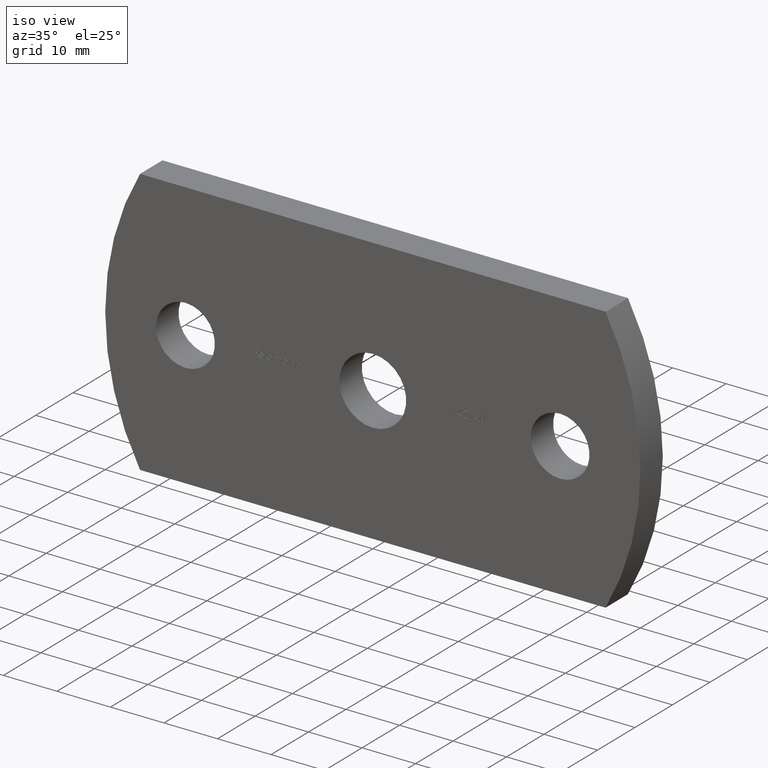
[diagram: clean part render]
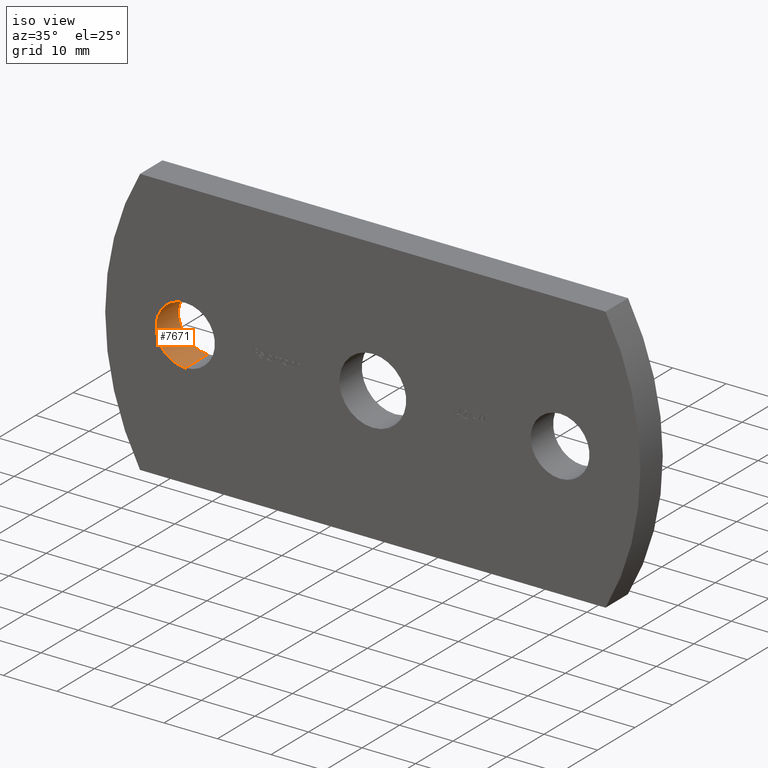
[diagram: same view with one face highlighted and labeled with its STEP entity id]
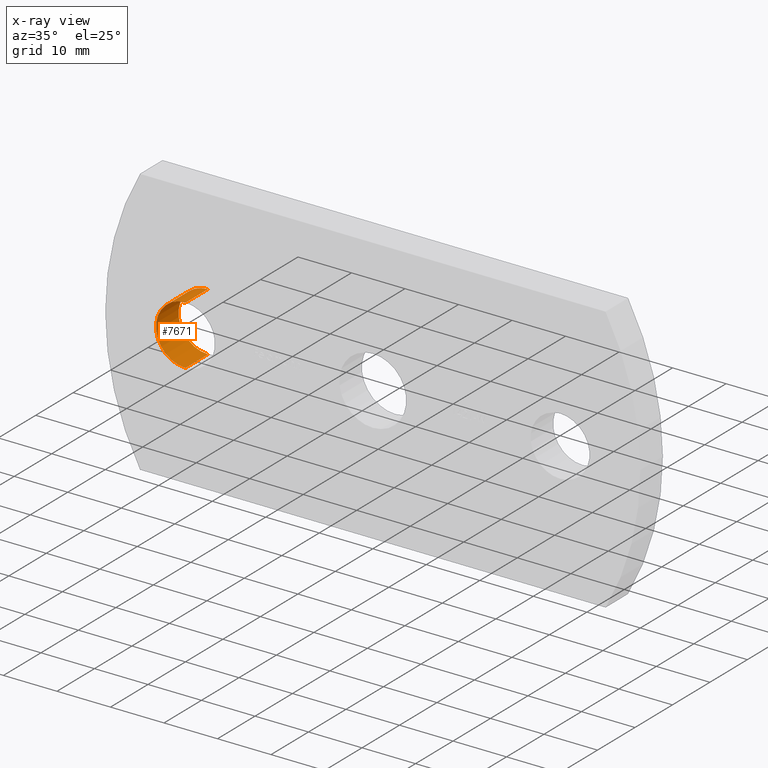
[diagram: x-ray of the same camera — body ghosted, the highlighted face saturated]
A machine part, iso view. The second image highlights one B-rep face of the part: STEP entity #7671.
The next image is the same camera in x-ray: the body ghosted, the highlighted face saturated — about 0% of this face is hidden behind the body in this view.
In plain terms, the highlighted cylindrical surface (edge-blend (fillet) strip) has radius 5.5 mm, axis along (-0, 1, -0).
Its self-contained STEP definition (entity closure, byte-faithful):
#69 = ORIENTED_EDGE ( 'NONE', *, *, #4955, .F. ) ;
#150 = CARTESIAN_POINT ( 'NONE',  ( -35.00000000000000000, 0.0000000000000000000, 0.0000000000000000000 ) ) ;
#429 = CARTESIAN_POINT ( 'NONE',  ( -35.00000000000000000, 6.000000000000000000, -5.499999999999996400 ) ) ;
#518 = DIRECTION ( 'NONE',  ( 0.0000000000000000000, 1.000000000000000000, 0.0000000000000000000 ) ) ;
#638 = LINE ( 'NONE', #4256, #5271 ) ;
#1134 = CARTESIAN_POINT ( 'NONE',  ( -35.00000000000000000, 0.0000000000000000000, -5.499999999999996400 ) ) ;
#1191 = CYLINDRICAL_SURFACE ( 'NONE', #7340, 5.499999999999996400 ) ;
#1385 = ORIENTED_EDGE ( 'NONE', *, *, #4314, .T. ) ;
#1496 = DIRECTION ( 'NONE',  ( 0.0000000000000000000, 0.0000000000000000000, 1.000000000000000000 ) ) ;
#1534 = CARTESIAN_POINT ( 'NONE',  ( -35.00000000000000000, 0.0000000000000000000, -5.499999999999996400 ) ) ;
#1970 = DIRECTION ( 'NONE',  ( 0.0000000000000000000, 0.0000000000000000000, 1.000000000000000000 ) ) ;
#2348 = DIRECTION ( 'NONE',  ( -0.0000000000000000000, 1.000000000000000000, -0.0000000000000000000 ) ) ;
#2823 = CIRCLE ( 'NONE', #7442, 5.499999999999996400 ) ;
#3024 = DIRECTION ( 'NONE',  ( -0.0000000000000000000, 1.000000000000000000, -0.0000000000000000000 ) ) ;
#3271 = ORIENTED_EDGE ( 'NONE', *, *, #3465, .T. ) ;
#3456 = VERTEX_POINT ( 'NONE', #8458 ) ;
#3465 = EDGE_CURVE ( 'NONE', #4026, #3456, #4123, .T. ) ;
#3503 = ORIENTED_EDGE ( 'NONE', *, *, #4807, .F. ) ;
#3859 = DIRECTION ( 'NONE',  ( 0.0000000000000000000, 0.0000000000000000000, 1.000000000000000000 ) ) ;
#4026 = VERTEX_POINT ( 'NONE', #429 ) ;
#4123 = CIRCLE ( 'NONE', #5487, 5.499999999999996400 ) ;
#4256 = CARTESIAN_POINT ( 'NONE',  ( -35.00000000000000000, 0.0000000000000000000, 5.499999999999996400 ) ) ;
#4314 = EDGE_CURVE ( 'NONE', #8033, #4026, #5876, .T. ) ;
#4449 = CARTESIAN_POINT ( 'NONE',  ( -35.00000000000000000, 0.0000000000000000000, 5.499999999999996400 ) ) ;
#4503 = CARTESIAN_POINT ( 'NONE',  ( -35.00000000000000000, 6.000000000000000000, 0.0000000000000000000 ) ) ;
#4807 = EDGE_CURVE ( 'NONE', #7544, #3456, #638, .T. ) ;
#4955 = EDGE_CURVE ( 'NONE', #8033, #7544, #2823, .T. ) ;
#5271 = VECTOR ( 'NONE', #2348, 1000.000000000000000 ) ;
#5484 = DIRECTION ( 'NONE',  ( -0.0000000000000000000, 1.000000000000000000, -0.0000000000000000000 ) ) ;
#5487 = AXIS2_PLACEMENT_3D ( 'NONE', #4503, #6449, #3859 ) ;
#5876 = LINE ( 'NONE', #1534, #7493 ) ;
#6449 = DIRECTION ( 'NONE',  ( 0.0000000000000000000, 1.000000000000000000, 0.0000000000000000000 ) ) ;
#6644 = FACE_OUTER_BOUND ( 'NONE', #7539, .T. ) ;
#7132 = CARTESIAN_POINT ( 'NONE',  ( -35.00000000000000000, 0.0000000000000000000, 0.0000000000000000000 ) ) ;
#7340 = AXIS2_PLACEMENT_3D ( 'NONE', #150, #5484, #1496 ) ;
#7442 = AXIS2_PLACEMENT_3D ( 'NONE', #7132, #518, #1970 ) ;
#7493 = VECTOR ( 'NONE', #3024, 1000.000000000000000 ) ;
#7539 = EDGE_LOOP ( 'NONE', ( #69, #1385, #3271, #3503 ) ) ;
#7544 = VERTEX_POINT ( 'NONE', #4449 ) ;
#7671 = ADVANCED_FACE ( 'NONE', ( #6644 ), #1191, .F. ) ;
#8033 = VERTEX_POINT ( 'NONE', #1134 ) ;
#8458 = CARTESIAN_POINT ( 'NONE',  ( -35.00000000000000000, 6.000000000000000000, 5.499999999999996400 ) ) ;